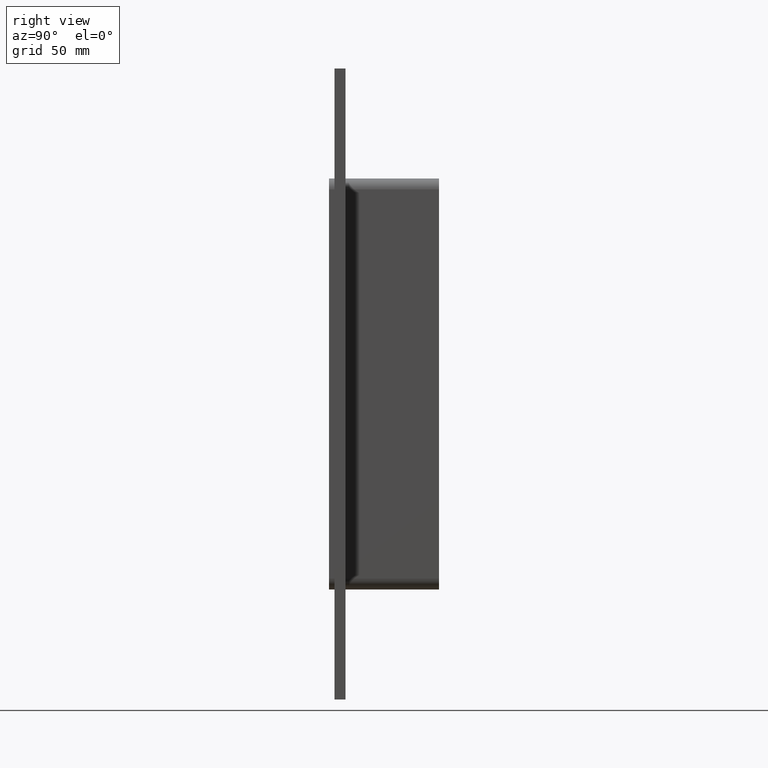
[diagram: clean part render]
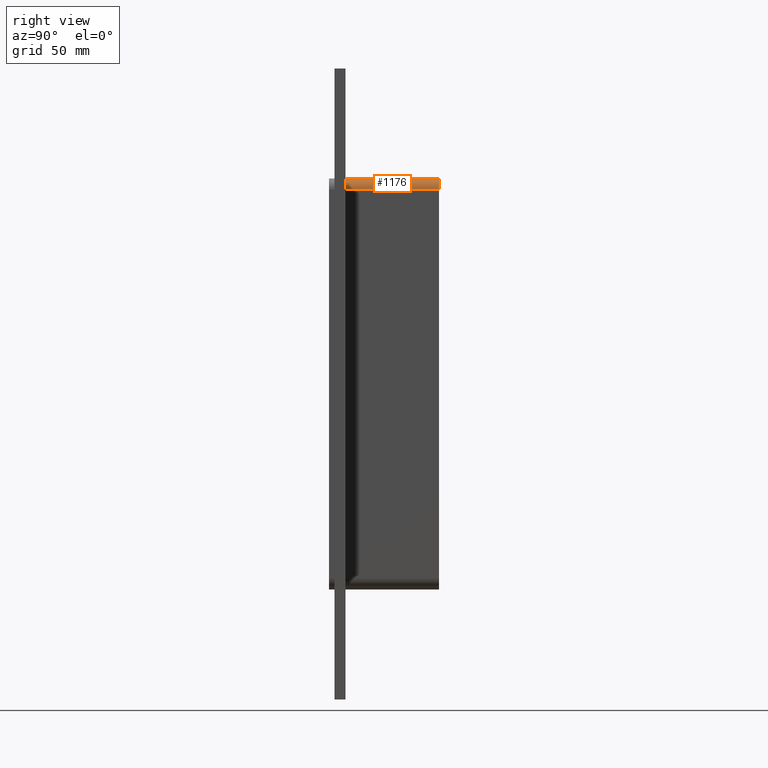
[diagram: same view with one face highlighted and labeled with its STEP entity id]
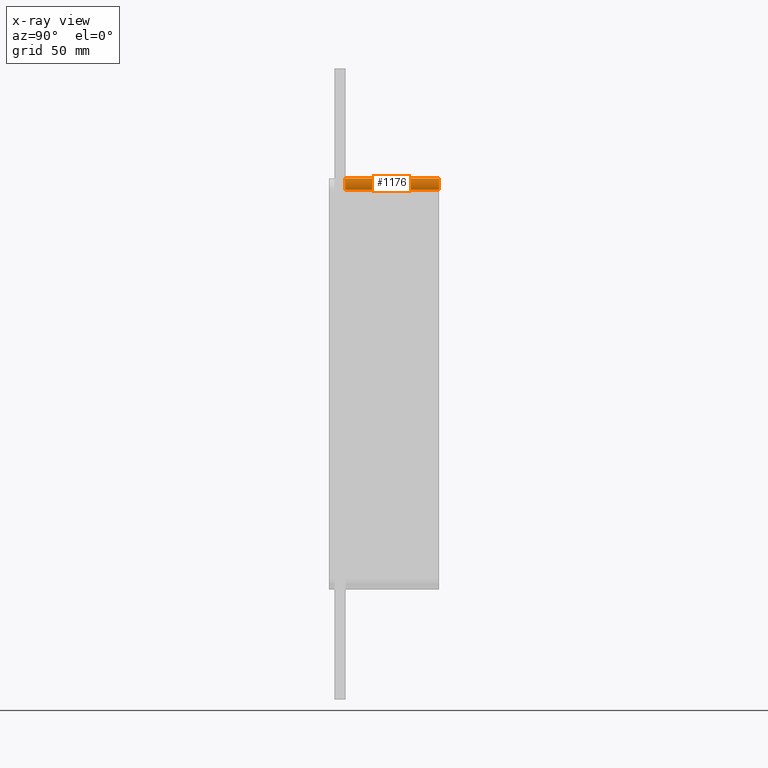
[diagram: x-ray of the same camera — body ghosted, the highlighted face saturated]
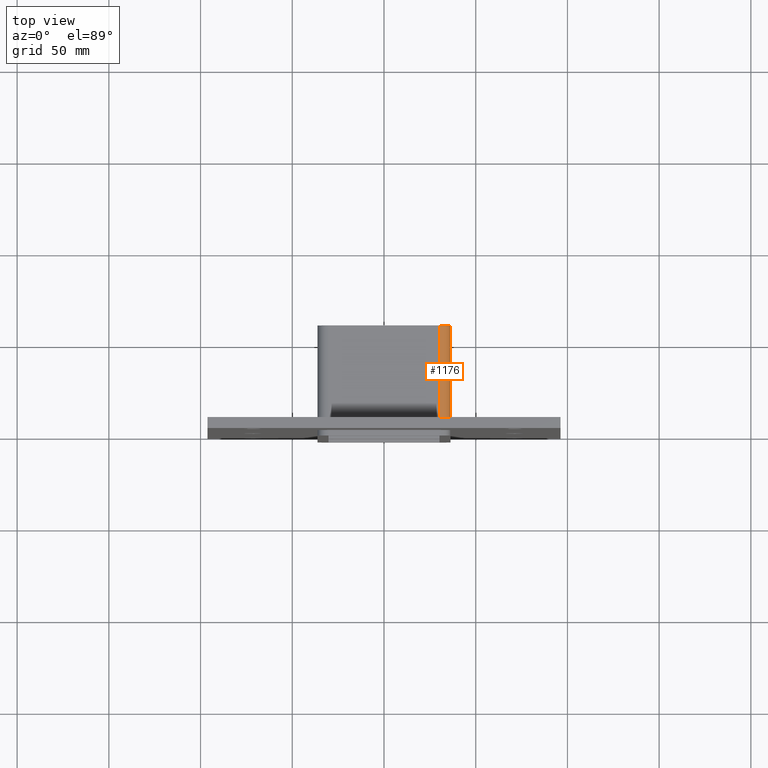
[diagram: same view with one face highlighted and labeled with its STEP entity id]
A machine part, right view. The second image highlights one B-rep face of the part: STEP entity #1176.
The next image is the same camera in x-ray: the body ghosted, the highlighted face saturated — about 0% of this face is hidden behind the body in this view.
A second angle (top view) of the same face is appended — the face is thin or edge-on in the first view.
In plain terms, the highlighted cylindrical surface (edge-blend (fillet) strip) has radius 6 mm, axis along (0, -1, 0).
Its self-contained STEP definition (entity closure, byte-faithful):
#511=CARTESIAN_POINT('',(36.25,6.000000000000001,106.00000000000003));
#512=VERTEX_POINT('',#511);
#519=CARTESIAN_POINT('',(30.250000000000004,6.000000000000001,112.00000000000003));
#520=VERTEX_POINT('',#519);
#521=CARTESIAN_POINT('',(30.250000000000004,6.000000000000001,106.00000000000003));
#522=DIRECTION('',(0.0,1.0,0.0));
#523=DIRECTION('',(0.707106781186548,0.0,0.707106781186547));
#524=AXIS2_PLACEMENT_3D('',#521,#522,#523);
#525=CIRCLE('',#524,6.0);
#526=EDGE_CURVE('',#520,#512,#525,.T.);
#1134=CARTESIAN_POINT('',(30.250000000000004,57.0,112.00000000000003));
#1135=VERTEX_POINT('',#1134);
#1136=CARTESIAN_POINT('',(30.250000000000004,57.0,112.00000000000003));
#1137=DIRECTION('',(0.0,-1.0,0.0));
#1138=VECTOR('',#1137,51.0);
#1139=LINE('',#1136,#1138);
#1140=EDGE_CURVE('',#1135,#520,#1139,.T.);
#1152=CARTESIAN_POINT('',(30.250000000000004,0.0,106.00000000000003));
#1153=DIRECTION('',(0.0,-1.0,0.0));
#1154=DIRECTION('',(0.707106781186548,0.0,0.707106781186547));
#1155=AXIS2_PLACEMENT_3D('',#1152,#1153,#1154);
#1156=CYLINDRICAL_SURFACE('',#1155,6.0);
#1157=ORIENTED_EDGE('',*,*,#526,.T.);
#1158=CARTESIAN_POINT('',(36.25,57.0,106.00000000000003));
#1159=VERTEX_POINT('',#1158);
#1160=CARTESIAN_POINT('',(36.25,6.000000000000001,106.00000000000003));
#1161=DIRECTION('',(0.0,1.0,0.0));
#1162=VECTOR('',#1161,51.0);
#1163=LINE('',#1160,#1162);
#1164=EDGE_CURVE('',#512,#1159,#1163,.T.);
#1165=ORIENTED_EDGE('',*,*,#1164,.T.);
#1166=CARTESIAN_POINT('',(30.250000000000004,57.0,106.00000000000003));
#1167=DIRECTION('',(0.0,-1.0,0.0));
#1168=DIRECTION('',(0.707106781186548,0.0,0.707106781186547));
#1169=AXIS2_PLACEMENT_3D('',#1166,#1167,#1168);
#1170=CIRCLE('',#1169,6.0);
#1171=EDGE_CURVE('',#1159,#1135,#1170,.T.);
#1172=ORIENTED_EDGE('',*,*,#1171,.T.);
#1173=ORIENTED_EDGE('',*,*,#1140,.T.);
#1174=EDGE_LOOP('',(#1157,#1165,#1172,#1173));
#1175=FACE_OUTER_BOUND('',#1174,.T.);
#1176=ADVANCED_FACE('',(#1175),#1156,.T.);